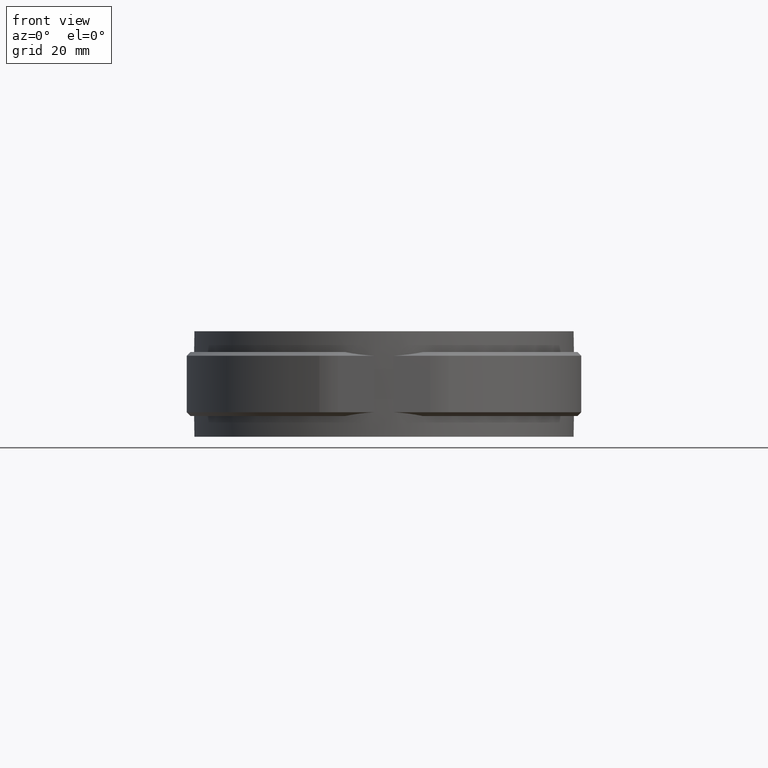
[diagram: clean part render]
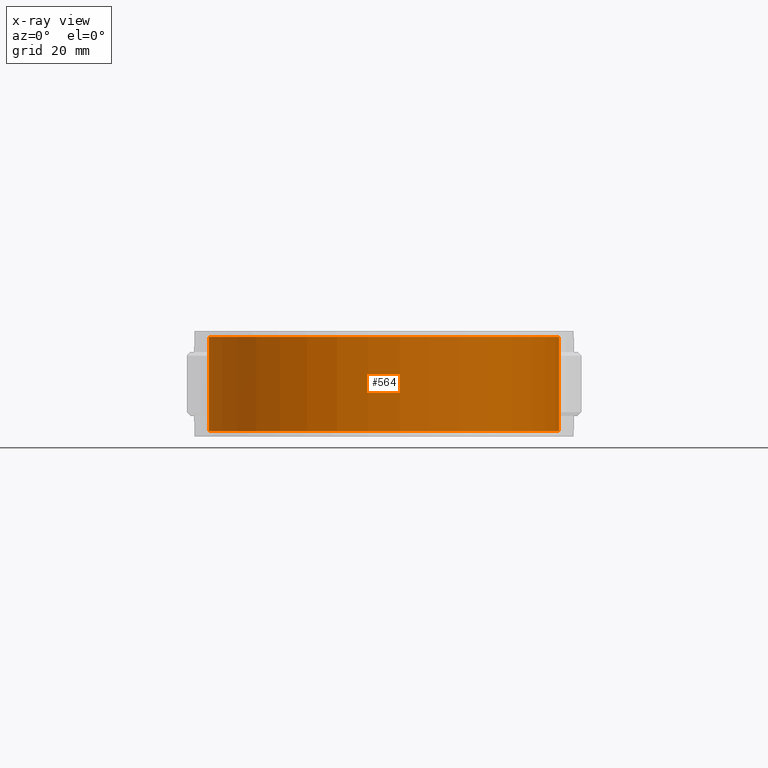
[diagram: x-ray — body ghosted, one internal face saturated and labeled with its STEP entity id]
A machine part, front view, then the same camera in x-ray: the body is ghosted and one INTERNAL B-rep face — a face not visible from any outside direction — is saturated and labeled: STEP entity #564.
In plain terms, the highlighted cylindrical surface (partial cylindrical patch) has radius 46.5 mm, axis along (0, 0, 1).
Its self-contained STEP definition (entity closure, byte-faithful):
#564 = ADVANCED_FACE( '', ( #1039 ), #1040, .T. );
#1039 = FACE_OUTER_BOUND( '', #2372, .T. );
#1040 = CYLINDRICAL_SURFACE( '', #2373, 46.5000000000000 );
#2372 = EDGE_LOOP( '', ( #5099, #5100, #5101, #5102 ) );
#2373 = AXIS2_PLACEMENT_3D( '', #5103, #5104, #5105 );
#5099 = ORIENTED_EDGE( '', *, *, #7637, .T. );
#5100 = ORIENTED_EDGE( '', *, *, #7646, .T. );
#5101 = ORIENTED_EDGE( '', *, *, #7691, .F. );
#5102 = ORIENTED_EDGE( '', *, *, #7596, .F. );
#5103 = CARTESIAN_POINT( '', ( 3.46944695195361E-015, 2.77555756156289E-014, 14.0000000000000 ) );
#5104 = DIRECTION( '', ( 0.000000000000000, 0.000000000000000, 1.00000000000000 ) );
#5105 = DIRECTION( '', ( 0.106382978723404, 0.994325229408334, 0.000000000000000 ) );
#7596 = EDGE_CURVE( '', #8804, #8806, #8807, .T. );
#7637 = EDGE_CURVE( '', #8804, #8874, #8876, .T. );
#7646 = EDGE_CURVE( '', #8874, #8889, #8891, .T. );
#7691 = EDGE_CURVE( '', #8806, #8889, #8966, .T. );
#8804 = VERTEX_POINT( '', #12515 );
#8806 = VERTEX_POINT( '', #12517 );
#8807 = CIRCLE( '', #12518, 46.5000000000000 );
#8874 = VERTEX_POINT( '', #12687 );
#8876 = LINE( '', #12689, #12690 );
#8889 = VERTEX_POINT( '', #12710 );
#8891 = CIRCLE( '', #12712, 46.5000000000000 );
#8966 = LINE( '', #12825, #12826 );
#12515 = CARTESIAN_POINT( '', ( -6.57575757575752, 46.0326993810364, 12.5000000000000 ) );
#12517 = CARTESIAN_POINT( '', ( 6.57575757575758, 46.0326993810363, 12.5000000000000 ) );
#12518 = AXIS2_PLACEMENT_3D( '', #14710, #14711, #14712 );
#12687 = CARTESIAN_POINT( '', ( -6.57575757575757, 46.0326993810364, -12.5000000000000 ) );
#12689 = CARTESIAN_POINT( '', ( -6.57575757575757, 46.0326993810364, 14.0000000000000 ) );
#12690 = VECTOR( '', #14749, 1000.00000000000 );
#12710 = CARTESIAN_POINT( '', ( 6.57575757575758, 46.0326993810364, -12.5000000000000 ) );
#12712 = AXIS2_PLACEMENT_3D( '', #14760, #14761, #14762 );
#12825 = CARTESIAN_POINT( '', ( 6.57575757575758, 46.0326993810364, 14.0000000000000 ) );
#12826 = VECTOR( '', #14825, 1000.00000000000 );
#14710 = CARTESIAN_POINT( '', ( 8.67361737988404E-016, -6.93889390390723E-015, 12.5000000000000 ) );
#14711 = DIRECTION( '', ( 0.000000000000000, 0.000000000000000, 1.00000000000000 ) );
#14712 = DIRECTION( '', ( 1.00000000000000, -8.32667268468867E-017, 0.000000000000000 ) );
#14749 = DIRECTION( '', ( 0.000000000000000, 0.000000000000000, -1.00000000000000 ) );
#14760 = CARTESIAN_POINT( '', ( 8.67361737988404E-016, -6.93889390390723E-015, -12.5000000000000 ) );
#14761 = DIRECTION( '', ( 0.000000000000000, 0.000000000000000, 1.00000000000000 ) );
#14762 = DIRECTION( '', ( 1.00000000000000, -8.32667268468867E-017, 0.000000000000000 ) );
#14825 = DIRECTION( '', ( 0.000000000000000, 0.000000000000000, -1.00000000000000 ) );